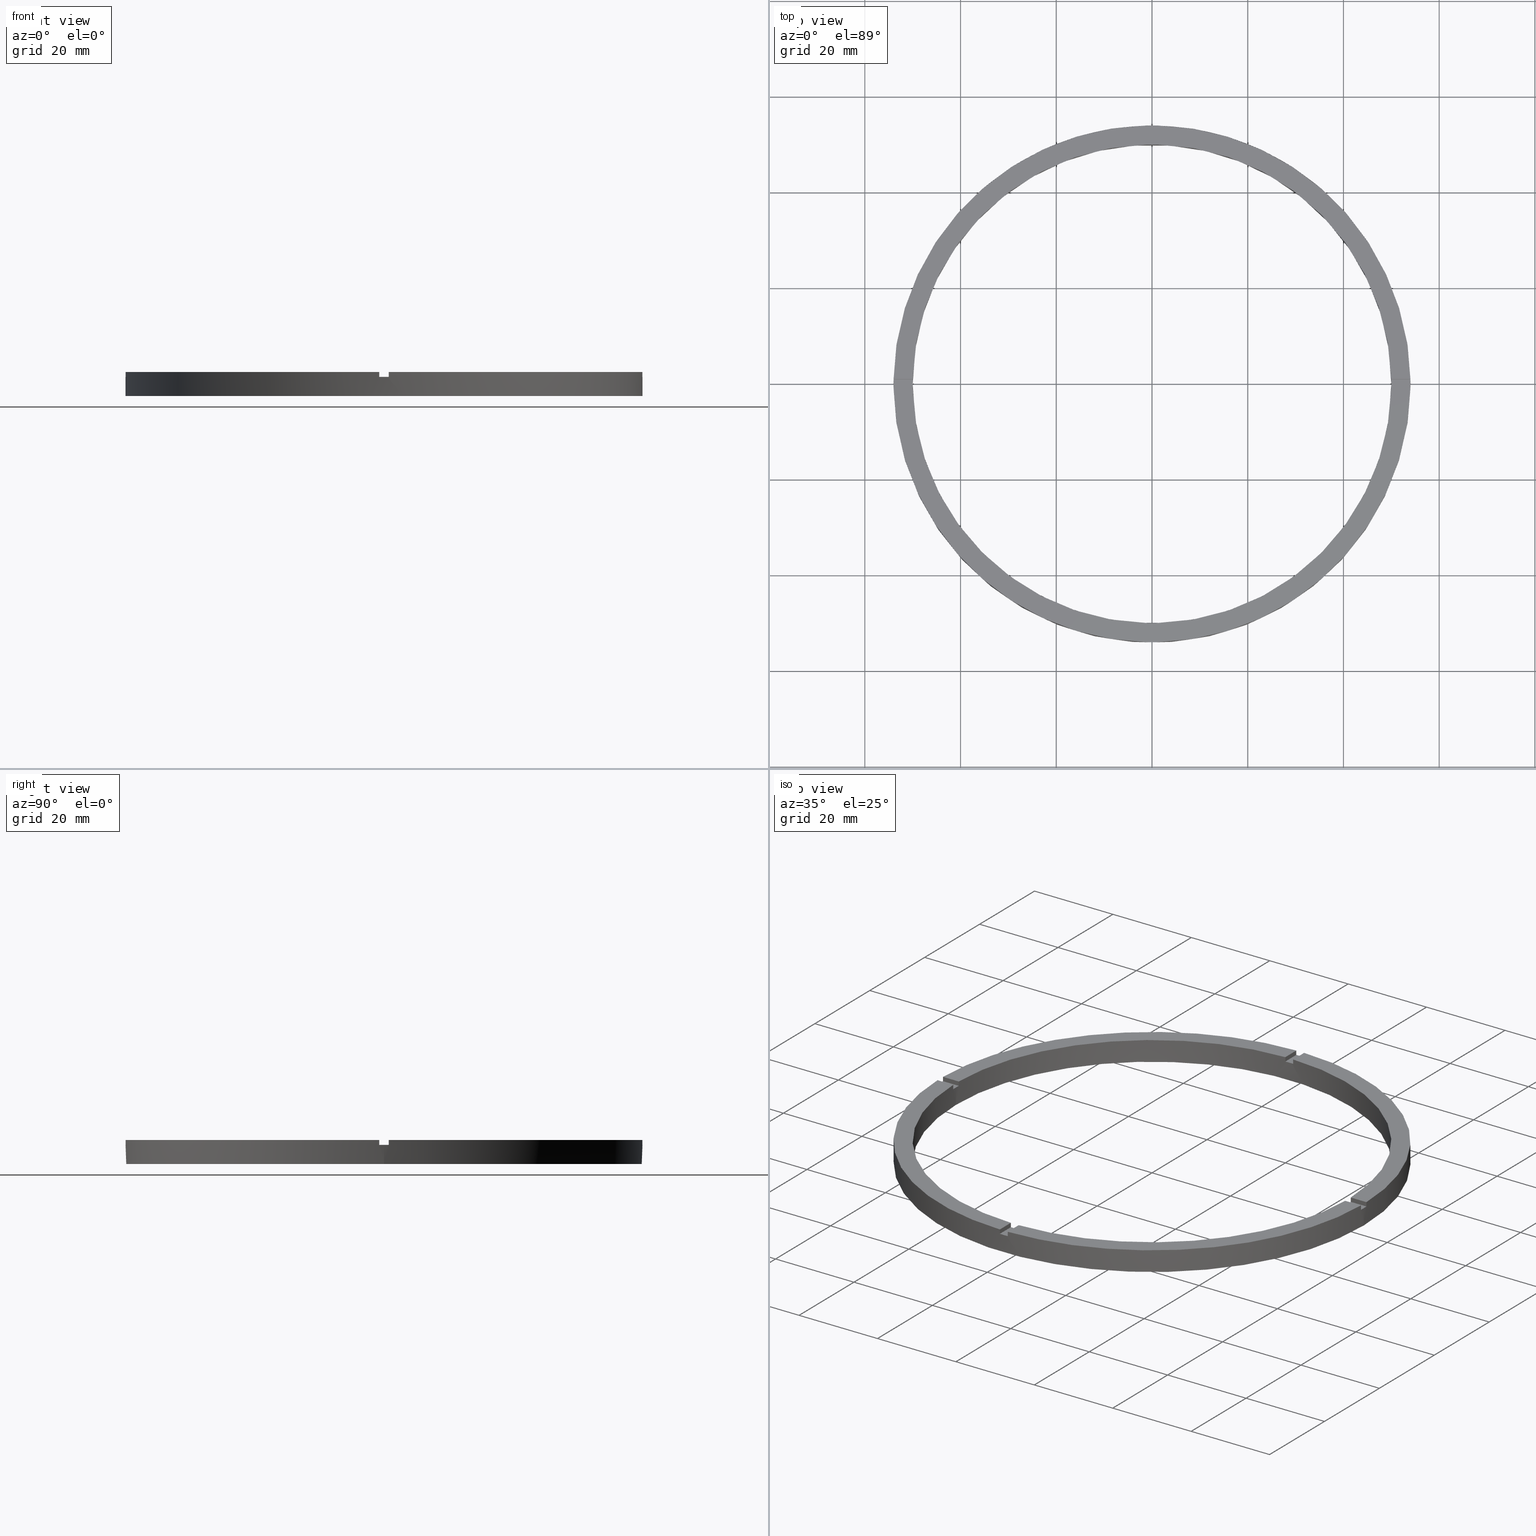
[diagram: canonical four-view strip — front | top / right | iso, engineering-drawing reading convention]
A machine part, canonical four-view strip (front | top / right | iso — engineering-drawing reading convention). The complete STEP part file that produces these views, byte-faithful:
ISO-10303-21;
HEADER;
FILE_DESCRIPTION (( 'STEP AP203' ),
    '1' );
FILE_NAME ('514221.step',
    '2024-12-26T02:49:29',
    ( 'MSI' ),
    ( '' ),
    'SwSTEP 2.0',
    'SolidWorks 2020',
    '' );
FILE_SCHEMA (( 'CONFIG_CONTROL_DESIGN' ));
ENDSEC;

DATA;
#1 = DIRECTION ( 'NONE',  ( 0.000000000000000000, -0.000000000000000000, 1.000000000000000000 ) ) ;
#2 = CARTESIAN_POINT ( 'NONE',  ( 0.000000000000000000, 0.000000000000000000, 0.000000000000000000 ) ) ;
#3 = APPROVAL ( #411, 'δָ��' ) ;
#4 = EDGE_CURVE ( 'NONE', #159, #285, #277, .T. ) ;
#5 = CARTESIAN_POINT ( 'NONE',  ( -49.98999899979995121, -1.000000000000031974, 4.000000000000000000 ) ) ;
#6 = EDGE_CURVE ( 'NONE', #728, #217, #572, .T. ) ;
#7 = AXIS2_PLACEMENT_3D ( 'NONE', #384, #80, #138 ) ;
#8 = DIRECTION ( 'NONE',  ( 0.000000000000000000, -0.000000000000000000, 1.000000000000000000 ) ) ;
#9 = AXIS2_PLACEMENT_3D ( 'NONE', #774, #11, #346 ) ;
#10 = CARTESIAN_POINT ( 'NONE',  ( 53.99073994677235788, 0.9999999999998456790, 4.000000000000000000 ) ) ;
#11 = DIRECTION ( 'NONE',  ( 0.000000000000000000, 0.000000000000000000, 1.000000000000000000 ) ) ;
#12 = AXIS2_PLACEMENT_3D ( 'NONE', #659, #216, #717 ) ;
#13 = CARTESIAN_POINT ( 'NONE',  ( 43.99999999999999289, 0.9999999999998450129, 4.000000000000000000 ) ) ;
#14 = CARTESIAN_POINT ( 'NONE',  ( -1.000000000000027311, 53.99073994677235078, 5.000000000000000000 ) ) ;
#15 = CARTESIAN_POINT ( 'NONE',  ( 54.00000000000000000, 6.613092715395707467E-15, 4.000000000000000000 ) ) ;
#16 = EDGE_CURVE ( 'NONE', #146, #57, #47, .T. ) ;
#17 = CARTESIAN_POINT ( 'NONE',  ( 43.99999999999999289, -1.000000000000154987, 4.000000000000000000 ) ) ;
#18 = DIRECTION ( 'NONE',  ( -0.000000000000000000, 0.000000000000000000, 1.000000000000000000 ) ) ;
#19 = EDGE_LOOP ( 'NONE', ( #708, #410, #448, #162 ) ) ;
#20 = DIRECTION ( 'NONE',  ( 1.000000000000000000, 0.000000000000000000, -0.000000000000000000 ) ) ;
#21 = LINE ( 'NONE', #168, #278 ) ;
#22 = APPROVAL_ROLE ( '' ) ;
#23 = LINE ( 'NONE', #362, #293 ) ;
#24 = PRODUCT_DEFINITION ( 'δ֪', '', #363, #190 ) ;
#25 = EDGE_CURVE ( 'NONE', #301, #200, #280, .T. ) ;
#26 = DIRECTION ( 'NONE',  ( 0.000000000000000000, 0.000000000000000000, 1.000000000000000000 ) ) ;
#27 = VECTOR ( 'NONE', #434, 1000.000000000000000 ) ;
#28 = PRODUCT_DEFINITION_SHAPE ( 'NONE', 'NONE',  #24 ) ;
#29 = DIRECTION ( 'NONE',  ( -0.000000000000000000, -1.000000000000000000, -0.000000000000000000 ) ) ;
#30 = LINE ( 'NONE', #606, #561 ) ;
#31 = PLANE ( 'NONE',  #641 ) ;
#32 = ORIENTED_EDGE ( 'NONE', *, *, #532, .T. ) ;
#33 = APPROVAL_STATUS ( 'not_yet_approved' ) ;
#34 = FACE_OUTER_BOUND ( 'NONE', #425, .T. ) ;
#35 = DIRECTION ( 'NONE',  ( -6.505213034913025371E-17, 1.000000000000000000, 0.000000000000000000 ) ) ;
#36 = CARTESIAN_POINT ( 'NONE',  ( 0.000000000000000000, 0.000000000000000000, 5.000000000000000000 ) ) ;
#37 = CALENDAR_DATE ( 2024, 26, 12 ) ;
#38 = LINE ( 'NONE', #497, #72 ) ;
#39 = VECTOR ( 'NONE', #130, 1000.000000000000000 ) ;
#40 = ORIENTED_EDGE ( 'NONE', *, *, #663, .F. ) ;
#41 = CARTESIAN_POINT ( 'NONE',  ( 0.000000000000000000, 0.000000000000000000, 0.000000000000000000 ) ) ;
#42 = CIRCLE ( 'NONE', #458, 50.00000000000000000 ) ;
#43 = AXIS2_PLACEMENT_3D ( 'NONE', #762, #215, #110 ) ;
#44 = ADVANCED_FACE ( 'NONE', ( #295 ), #575, .F. ) ;
#45 = FACE_OUTER_BOUND ( 'NONE', #702, .T. ) ;
#46 = APPROVAL_PERSON_ORGANIZATION ( #61, #558, #337 ) ;
#47 = CIRCLE ( 'NONE', #350, 54.00000000000000000 ) ;
#48 = ORIENTED_EDGE ( 'NONE', *, *, #768, .T. ) ;
#49 = CARTESIAN_POINT ( 'NONE',  ( 0.9999999999998436806, -49.98999899979995831, 5.000000000000000000 ) ) ;
#50 = CARTESIAN_POINT ( 'NONE',  ( 0.9999999999998427924, -44.00000000000017764, 4.000000000000000000 ) ) ;
#51 = COORDINATED_UNIVERSAL_TIME_OFFSET ( 8, 0, .AHEAD. ) ;
#52 = FACE_OUTER_BOUND ( 'NONE', #206, .T. ) ;
#53 = PERSON_AND_ORGANIZATION_ROLE ( 'creator' ) ;
#54 = ORIENTED_EDGE ( 'NONE', *, *, #128, .T. ) ;
#55 = COORDINATED_UNIVERSAL_TIME_OFFSET ( 8, 0, .AHEAD. ) ;
#56 = ORIENTED_EDGE ( 'NONE', *, *, #377, .F. ) ;
#57 = VERTEX_POINT ( 'NONE', #207 ) ;
#58 = AXIS2_PLACEMENT_3D ( 'NONE', #514, #698, #463 ) ;
#59 = COORDINATED_UNIVERSAL_TIME_OFFSET ( 8, 0, .AHEAD. ) ;
#60 = EDGE_LOOP ( 'NONE', ( #429, #380, #447, #180 ) ) ;
#61 = PERSON_AND_ORGANIZATION ( #125, #443 ) ;
#62 = LINE ( 'NONE', #113, #555 ) ;
#63 = FACE_OUTER_BOUND ( 'NONE', #186, .T. ) ;
#64 = DATE_AND_TIME ( #68, #292 ) ;
#65 = CARTESIAN_POINT ( 'NONE',  ( -1.000000000000157208, -44.00000000000017764, 4.000000000000000000 ) ) ;
#66 = ORIENTED_EDGE ( 'NONE', *, *, #226, .T. ) ;
#67 = AXIS2_PLACEMENT_3D ( 'NONE', #772, #26, #239 ) ;
#68 = CALENDAR_DATE ( 2024, 26, 12 ) ;
#69 = CARTESIAN_POINT ( 'NONE',  ( 0.000000000000000000, 0.000000000000000000, 5.000000000000000000 ) ) ;
#70 = FACE_OUTER_BOUND ( 'NONE', #688, .T. ) ;
#71 = CARTESIAN_POINT ( 'NONE',  ( -1.000000000000157208, -44.00000000000017764, 4.000000000000000000 ) ) ;
#72 = VECTOR ( 'NONE', #779, 1000.000000000000000 ) ;
#73 = CIRCLE ( 'NONE', #58, 54.00000000000000000 ) ;
#74 = LINE ( 'NONE', #391, #608 ) ;
#75 = AXIS2_PLACEMENT_3D ( 'NONE', #342, #402, #476 ) ;
#76 = PLANE ( 'NONE',  #170 ) ;
#77 = LINE ( 'NONE', #770, #609 ) ;
#78 = CARTESIAN_POINT ( 'NONE',  ( 53.99073994677235078, -1.000000000000154321, 4.000000000000000000 ) ) ;
#79 = LINE ( 'NONE', #562, #605 ) ;
#80 = DIRECTION ( 'NONE',  ( -0.000000000000000000, -0.000000000000000000, -1.000000000000000000 ) ) ;
#81 = CIRCLE ( 'NONE', #419, 50.00000000000000000 ) ;
#82 = VECTOR ( 'NONE', #516, 1000.000000000000000 ) ;
#83 = CIRCLE ( 'NONE', #75, 50.00000000000000000 ) ;
#84 = LINE ( 'NONE', #111, #618 ) ;
#85 = EDGE_CURVE ( 'NONE', #689, #155, #546, .T. ) ;
#86 = ORIENTED_EDGE ( 'NONE', *, *, #156, .T. ) ;
#87 = LINE ( 'NONE', #764, #97 ) ;
#88 = ORIENTED_EDGE ( 'NONE', *, *, #214, .T. ) ;
#89 = CIRCLE ( 'NONE', #778, 50.00000000000000000 ) ;
#90 = CIRCLE ( 'NONE', #712, 54.00000000000000000 ) ;
#91 = VECTOR ( 'NONE', #539, 1000.000000000000000 ) ;
#92 = EDGE_CURVE ( 'NONE', #146, #210, #283, .T. ) ;
#93 = DIRECTION ( 'NONE',  ( -0.000000000000000000, 0.000000000000000000, 1.000000000000000000 ) ) ;
#94 = CIRCLE ( 'NONE', #43, 50.00000000000000000 ) ;
#95 = LINE ( 'NONE', #487, #82 ) ;
#96 = VECTOR ( 'NONE', #166, 1000.000000000000000 ) ;
#97 = VECTOR ( 'NONE', #773, 1000.000000000000000 ) ;
#98 = CIRCLE ( 'NONE', #390, 54.00000000000000000 ) ;
#99 = CARTESIAN_POINT ( 'NONE',  ( 0.9999999999998436806, -49.98999899979995831, 5.000000000000000000 ) ) ;
#100 = FACE_OUTER_BOUND ( 'NONE', #547, .T. ) ;
#101 = EDGE_CURVE ( 'NONE', #639, #760, #300, .T. ) ;
#102 = CIRCLE ( 'NONE', #444, 54.00000000000000000 ) ;
#103 = ORIENTED_EDGE ( 'NONE', *, *, #329, .F. ) ;
#104 = VECTOR ( 'NONE', #29, 1000.000000000000000 ) ;
#105 = LINE ( 'NONE', #65, #366 ) ;
#106 = AXIS2_PLACEMENT_3D ( 'NONE', #323, #18, #692 ) ;
#107 = VECTOR ( 'NONE', #357, 1000.000000000000000 ) ;
#108 = ADVANCED_FACE ( 'NONE', ( #306 ), #424, .F. ) ;
#109 = FACE_BOUND ( 'NONE', #488, .T. ) ;
#110 = DIRECTION ( 'NONE',  ( 1.000000000000000000, 0.000000000000000000, 0.000000000000000000 ) ) ;
#111 = CARTESIAN_POINT ( 'NONE',  ( 43.99999999999999289, 0.9999999999998450129, 4.000000000000000000 ) ) ;
#112 = EDGE_CURVE ( 'NONE', #689, #639, #23, .T. ) ;
#113 = CARTESIAN_POINT ( 'NONE',  ( 0.9999999999999726885, 53.99073994677235078, 5.000000000000000000 ) ) ;
#114 = ORIENTED_EDGE ( 'NONE', *, *, #248, .T. ) ;
#115 = VECTOR ( 'NONE', #665, 1000.000000000000000 ) ;
#116 = VERTEX_POINT ( 'NONE', #264 ) ;
#117 = AXIS2_PLACEMENT_3D ( 'NONE', #370, #246, #244 ) ;
#118 = ORIENTED_EDGE ( 'NONE', *, *, #231, .T. ) ;
#119 = ORIENTED_EDGE ( 'NONE', *, *, #550, .T. ) ;
#120 = CC_DESIGN_PERSON_AND_ORGANIZATION_ASSIGNMENT ( #571, #53, ( #24 ) ) ;
#121 = CARTESIAN_POINT ( 'NONE',  ( 43.99999999999999289, -1.000000000000154987, 5.000000000000000000 ) ) ;
#122 = DIRECTION ( 'NONE',  ( -1.000000000000000000, -6.505213034913025371E-17, 0.000000000000000000 ) ) ;
#123 = ORIENTED_EDGE ( 'NONE', *, *, #581, .F. ) ;
#124 = ADVANCED_FACE ( 'NONE', ( #63 ), #316, .T. ) ;
#125 = PERSON ( 'δָ��', 'δָ��', 'δָ��', ('δָ��'), ('δָ��'), ('δָ��') ) ;
#126 = ORIENTED_EDGE ( 'NONE', *, *, #25, .F. ) ;
#127 = ORIENTED_EDGE ( 'NONE', *, *, #85, .F. ) ;
#128 = EDGE_CURVE ( 'NONE', #149, #759, #30, .T. ) ;
#129 = CARTESIAN_POINT ( 'NONE',  ( -53.99073994677235078, -1.000000000000032863, 4.000000000000000000 ) ) ;
#130 = DIRECTION ( 'NONE',  ( 0.000000000000000000, 0.000000000000000000, 1.000000000000000000 ) ) ;
#131 = EDGE_CURVE ( 'NONE', #152, #217, #559, .T. ) ;
#132 = AXIS2_PLACEMENT_3D ( 'NONE', #413, #1, #255 ) ;
#133 = DIRECTION ( 'NONE',  ( 1.517883041479705961E-16, -1.000000000000000000, 0.000000000000000000 ) ) ;
#134 = ADVANCED_FACE ( 'NONE', ( #52 ), #580, .F. ) ;
#135 = UNCERTAINTY_MEASURE_WITH_UNIT (LENGTH_MEASURE( 1.000000000000000082E-05 ), #677, 'distance_accuracy_value', 'NONE');
#136 = CARTESIAN_POINT ( 'NONE',  ( 53.99073994677235788, 0.9999999999998456790, 5.000000000000000000 ) ) ;
#137 = AXIS2_PLACEMENT_3D ( 'NONE', #611, #782, #275 ) ;
#138 = DIRECTION ( 'NONE',  ( -1.000000000000000000, 0.000000000000000000, 0.000000000000000000 ) ) ;
#139 = EDGE_CURVE ( 'NONE', #140, #703, #21, .T. ) ;
#140 = VERTEX_POINT ( 'NONE', #557 ) ;
#141 = CARTESIAN_POINT ( 'NONE',  ( 0.9999999999999726885, 44.00000000000000000, 5.000000000000000000 ) ) ;
#142 = ORIENTED_EDGE ( 'NONE', *, *, #128, .F. ) ;
#143 = ORIENTED_EDGE ( 'NONE', *, *, #440, .T. ) ;
#144 = PRODUCT_RELATED_PRODUCT_CATEGORY ( 'detail', '', ( #533 ) ) ;
#145 = EDGE_LOOP ( 'NONE', ( #167, #164, #690, #674 ) ) ;
#146 = VERTEX_POINT ( 'NONE', #771 ) ;
#147 = ORIENTED_EDGE ( 'NONE', *, *, #25, .T. ) ;
#148 = PLANE ( 'NONE',  #544 ) ;
#149 = VERTEX_POINT ( 'NONE', #719 ) ;
#150 = EDGE_CURVE ( 'NONE', #703, #191, #276, .T. ) ;
#151 = ORIENTED_EDGE ( 'NONE', *, *, #431, .T. ) ;
#152 = VERTEX_POINT ( 'NONE', #489 ) ;
#153 = EDGE_LOOP ( 'NONE', ( #212, #48, #750, #752 ) ) ;
#154 = CARTESIAN_POINT ( 'NONE',  ( 0.000000000000000000, 0.000000000000000000, 5.000000000000000000 ) ) ;
#155 = VERTEX_POINT ( 'NONE', #765 ) ;
#156 = EDGE_CURVE ( 'NONE', #639, #695, #307, .T. ) ;
#157 = PERSON_AND_ORGANIZATION_ROLE ( 'classification_officer' ) ;
#158 = ORIENTED_EDGE ( 'NONE', *, *, #634, .F. ) ;
#159 = VERTEX_POINT ( 'NONE', #649 ) ;
#160 = DIRECTION ( 'NONE',  ( 0.000000000000000000, 0.000000000000000000, 1.000000000000000000 ) ) ;
#161 = PLANE ( 'NONE',  #776 ) ;
#162 = ORIENTED_EDGE ( 'NONE', *, *, #691, .F. ) ;
#163 = AXIS2_PLACEMENT_3D ( 'NONE', #536, #173, #365 ) ;
#164 = ORIENTED_EDGE ( 'NONE', *, *, #400, .F. ) ;
#165 = ORIENTED_EDGE ( 'NONE', *, *, #550, .F. ) ;
#166 = DIRECTION ( 'NONE',  ( -1.000000000000000000, -2.168404344971008621E-16, 0.000000000000000000 ) ) ;
#167 = ORIENTED_EDGE ( 'NONE', *, *, #440, .F. ) ;
#168 = CARTESIAN_POINT ( 'NONE',  ( 43.99999999999999289, -1.000000000000154987, 4.000000000000000000 ) ) ;
#169 = ORIENTED_EDGE ( 'NONE', *, *, #766, .T. ) ;
#170 = AXIS2_PLACEMENT_3D ( 'NONE', #181, #228, #525 ) ;
#171 = ADVANCED_FACE ( 'NONE', ( #70 ), #161, .T. ) ;
#172 = ORIENTED_EDGE ( 'NONE', *, *, #389, .F. ) ;
#173 = DIRECTION ( 'NONE',  ( -0.000000000000000000, -0.000000000000000000, -1.000000000000000000 ) ) ;
#174 = ORIENTED_EDGE ( 'NONE', *, *, #389, .T. ) ;
#175 = DIRECTION ( 'NONE',  ( 0.000000000000000000, 0.000000000000000000, 1.000000000000000000 ) ) ;
#176 = ORIENTED_EDGE ( 'NONE', *, *, #231, .F. ) ;
#177 = VERTEX_POINT ( 'NONE', #465 ) ;
#178 = AXIS2_PLACEMENT_3D ( 'NONE', #234, #93, #352 ) ;
#179 = ORIENTED_EDGE ( 'NONE', *, *, #567, .T. ) ;
#180 = ORIENTED_EDGE ( 'NONE', *, *, #382, .T. ) ;
#181 = CARTESIAN_POINT ( 'NONE',  ( -44.00000000000018474, 0.9999999999999694689, 4.000000000000000000 ) ) ;
#182 = CARTESIAN_POINT ( 'NONE',  ( -1.000000000000157208, -44.00000000000017764, 5.000000000000000000 ) ) ;
#183 = ORIENTED_EDGE ( 'NONE', *, *, #85, .T. ) ;
#184 = ORIENTED_EDGE ( 'NONE', *, *, #512, .F. ) ;
#185 = ORIENTED_EDGE ( 'NONE', *, *, #687, .F. ) ;
#186 = EDGE_LOOP ( 'NONE', ( #165, #616, #114, #127, #204, #185, #646, #700, #378, #123, #118, #468 ) ) ;
#187 = DIRECTION ( 'NONE',  ( 1.000000000000000000, 0.000000000000000000, 0.000000000000000000 ) ) ;
#188 = VERTEX_POINT ( 'NONE', #521 ) ;
#189 = DIRECTION ( 'NONE',  ( 0.000000000000000000, 0.000000000000000000, 1.000000000000000000 ) ) ;
#190 = DESIGN_CONTEXT ( 'detailed design', #262, 'design' ) ;
#191 = VERTEX_POINT ( 'NONE', #15 ) ;
#192 = CARTESIAN_POINT ( 'NONE',  ( 0.000000000000000000, 0.000000000000000000, 0.000000000000000000 ) ) ;
#193 = PERSON_AND_ORGANIZATION ( #125, #443 ) ;
#194 = CC_DESIGN_APPROVAL ( #558, ( #363 ) ) ;
#195 = CARTESIAN_POINT ( 'NONE',  ( -44.00000000000018474, -1.000000000000030642, 5.000000000000000000 ) ) ;
#196 = ORIENTED_EDGE ( 'NONE', *, *, #248, .F. ) ;
#197 = ADVANCED_FACE ( 'NONE', ( #297 ), #31, .T. ) ;
#198 = CARTESIAN_POINT ( 'NONE',  ( 0.9999999999998443467, -53.99073994677235788, 5.000000000000000000 ) ) ;
#199 = ORIENTED_EDGE ( 'NONE', *, *, #492, .F. ) ;
#200 = VERTEX_POINT ( 'NONE', #479 ) ;
#201 = APPROVAL_PERSON_ORGANIZATION ( #723, #436, #236 ) ;
#202 = CARTESIAN_POINT ( 'NONE',  ( 49.98999899979995121, -1.000000000000154543, 5.000000000000000000 ) ) ;
#203 = COORDINATED_UNIVERSAL_TIME_OFFSET ( 8, 0, .AHEAD. ) ;
#204 = ORIENTED_EDGE ( 'NONE', *, *, #582, .T. ) ;
#205 = AXIS2_PLACEMENT_3D ( 'NONE', #499, #8, #682 ) ;
#206 = EDGE_LOOP ( 'NONE', ( #103, #414, #143, #369 ) ) ;
#207 = CARTESIAN_POINT ( 'NONE',  ( 0.9999999999999726885, 53.99073994677235078, 5.000000000000000000 ) ) ;
#208 = ORIENTED_EDGE ( 'NONE', *, *, #537, .F. ) ;
#209 = AXIS2_PLACEMENT_3D ( 'NONE', #777, #256, #388 ) ;
#210 = VERTEX_POINT ( 'NONE', #592 ) ;
#211 = ORIENTED_EDGE ( 'NONE', *, *, #112, .F. ) ;
#212 = ORIENTED_EDGE ( 'NONE', *, *, #620, .F. ) ;
#213 = ORIENTED_EDGE ( 'NONE', *, *, #746, .F. ) ;
#214 = EDGE_CURVE ( 'NONE', #285, #699, #589, .T. ) ;
#215 = DIRECTION ( 'NONE',  ( 0.000000000000000000, 0.000000000000000000, 1.000000000000000000 ) ) ;
#216 = DIRECTION ( 'NONE',  ( 0.000000000000000000, 0.000000000000000000, 1.000000000000000000 ) ) ;
#217 = VERTEX_POINT ( 'NONE', #528 ) ;
#218 = EDGE_LOOP ( 'NONE', ( #569, #291, #477, #748, #208, #585, #213, #310, #288, #478, #54, #56 ) ) ;
#219 = EDGE_LOOP ( 'NONE', ( #684, #696, #720, #409 ) ) ;
#220 = VERTEX_POINT ( 'NONE', #730 ) ;
#221 = DIRECTION ( 'NONE',  ( -1.000000000000000000, -2.168404344971008621E-16, 0.000000000000000000 ) ) ;
#222 = CARTESIAN_POINT ( 'NONE',  ( -44.00000000000018474, -1.000000000000030642, 4.000000000000000000 ) ) ;
#223 = VERTEX_POINT ( 'NONE', #756 ) ;
#224 = CARTESIAN_POINT ( 'NONE',  ( 0.000000000000000000, 0.000000000000000000, 5.000000000000000000 ) ) ;
#225 = CARTESIAN_POINT ( 'NONE',  ( -1.000000000000027311, 44.00000000000000000, 4.000000000000000000 ) ) ;
#226 = EDGE_CURVE ( 'NONE', #159, #116, #286, .T. ) ;
#227 = APPLICATION_CONTEXT ( 'configuration controlled 3d designs of mechanical parts and assemblies' ) ;
#228 = DIRECTION ( 'NONE',  ( -2.168404344971008621E-16, 1.000000000000000000, 0.000000000000000000 ) ) ;
#229 = DIRECTION ( 'NONE',  ( 1.000000000000000000, 0.000000000000000000, 0.000000000000000000 ) ) ;
#230 = DIRECTION ( 'NONE',  ( 1.000000000000000000, 0.000000000000000000, -0.000000000000000000 ) ) ;
#231 = EDGE_CURVE ( 'NONE', #188, #556, #552, .T. ) ;
#232 = ADVANCED_FACE ( 'NONE', ( #303 ), #76, .F. ) ;
#233 = PLANE ( 'NONE',  #132 ) ;
#234 = CARTESIAN_POINT ( 'NONE',  ( 0.000000000000000000, 0.000000000000000000, 4.000000000000000000 ) ) ;
#235 = ADVANCED_BREP_SHAPE_REPRESENTATION ( '514221', ( #610, #507 ), #529 ) ;
#236 = APPROVAL_ROLE ( '' ) ;
#237 = DIRECTION ( 'NONE',  ( 0.000000000000000000, 0.000000000000000000, 1.000000000000000000 ) ) ;
#238 = EDGE_CURVE ( 'NONE', #753, #223, #591, .T. ) ;
#239 = DIRECTION ( 'NONE',  ( 1.000000000000000000, 0.000000000000000000, 0.000000000000000000 ) ) ;
#240 = ADVANCED_FACE ( 'NONE', ( #584 ), #493, .T. ) ;
#241 = DIRECTION ( 'NONE',  ( -0.000000000000000000, -0.000000000000000000, -1.000000000000000000 ) ) ;
#242 = CARTESIAN_POINT ( 'NONE',  ( 0.000000000000000000, 0.000000000000000000, 5.000000000000000000 ) ) ;
#243 = AXIS2_PLACEMENT_3D ( 'NONE', #2, #675, #624 ) ;
#244 = DIRECTION ( 'NONE',  ( 1.000000000000000000, 0.000000000000000000, -0.000000000000000000 ) ) ;
#245 = EDGE_CURVE ( 'NONE', #301, #57, #62, .T. ) ;
#246 = DIRECTION ( 'NONE',  ( 0.000000000000000000, 0.000000000000000000, 1.000000000000000000 ) ) ;
#247 = AXIS2_PLACEMENT_3D ( 'NONE', #41, #503, #540 ) ;
#248 = EDGE_CURVE ( 'NONE', #703, #155, #586, .T. ) ;
#249 = CARTESIAN_POINT ( 'NONE',  ( 0.000000000000000000, 0.000000000000000000, 5.000000000000000000 ) ) ;
#250 = EDGE_CURVE ( 'NONE', #695, #155, #312, .T. ) ;
#251 = DIRECTION ( 'NONE',  ( 1.000000000000000000, 6.505213034913025371E-17, 0.000000000000000000 ) ) ;
#252 = AXIS2_PLACEMENT_3D ( 'NONE', #69, #237, #724 ) ;
#253 = CARTESIAN_POINT ( 'NONE',  ( -49.98999899979995121, 0.9999999999999681366, 5.000000000000000000 ) ) ;
#254 = PLANE ( 'NONE',  #769 ) ;
#255 = DIRECTION ( 'NONE',  ( 1.000000000000000000, 0.000000000000000000, -0.000000000000000000 ) ) ;
#256 = DIRECTION ( 'NONE',  ( 0.000000000000000000, 0.000000000000000000, 1.000000000000000000 ) ) ;
#257 = DIRECTION ( 'NONE',  ( 0.000000000000000000, 0.000000000000000000, 1.000000000000000000 ) ) ;
#258 = EDGE_CURVE ( 'NONE', #149, #699, #563, .T. ) ;
#259 = DIRECTION ( 'NONE',  ( 0.000000000000000000, 0.000000000000000000, 1.000000000000000000 ) ) ;
#260 = ADVANCED_FACE ( 'NONE', ( #34 ), #233, .T. ) ;
#261 = CC_DESIGN_SECURITY_CLASSIFICATION ( #763, ( #363 ) ) ;
#262 = APPLICATION_CONTEXT ( 'configuration controlled 3d designs of mechanical parts and assemblies' ) ;
#263 = EDGE_CURVE ( 'NONE', #140, #695, #38, .T. ) ;
#264 = CARTESIAN_POINT ( 'NONE',  ( -49.98999899979995121, -1.000000000000031974, 5.000000000000000000 ) ) ;
#265 = ADVANCED_FACE ( 'NONE', ( #45 ), #401, .F. ) ;
#266 = DIRECTION ( 'NONE',  ( 0.000000000000000000, 0.000000000000000000, 1.000000000000000000 ) ) ;
#267 = CARTESIAN_POINT ( 'NONE',  ( -1.000000000000156319, -49.98999899979995121, 5.000000000000000000 ) ) ;
#268 = DIRECTION ( 'NONE',  ( 0.000000000000000000, 0.000000000000000000, 1.000000000000000000 ) ) ;
#269 = EDGE_CURVE ( 'NONE', #753, #220, #42, .T. ) ;
#270 = DIRECTION ( 'NONE',  ( -0.000000000000000000, -0.000000000000000000, -1.000000000000000000 ) ) ;
#271 = AXIS2_PLACEMENT_3D ( 'NONE', #340, #502, #475 ) ;
#272 = VECTOR ( 'NONE', #504, 1000.000000000000000 ) ;
#273 = DIRECTION ( 'NONE',  ( 1.000000000000000000, 0.000000000000000000, -0.000000000000000000 ) ) ;
#274 = VECTOR ( 'NONE', #740, 1000.000000000000000 ) ;
#275 = DIRECTION ( 'NONE',  ( 1.000000000000000000, 0.000000000000000000, 0.000000000000000000 ) ) ;
#276 = CIRCLE ( 'NONE', #522, 54.00000000000000000 ) ;
#277 = LINE ( 'NONE', #506, #578 ) ;
#278 = VECTOR ( 'NONE', #325, 1000.000000000000000 ) ;
#279 = CARTESIAN_POINT ( 'NONE',  ( -54.00000000000000000, 0.000000000000000000, 5.000000000000000000 ) ) ;
#280 = CIRCLE ( 'NONE', #205, 54.00000000000000000 ) ;
#281 = DIRECTION ( 'NONE',  ( -1.000000000000000000, 0.000000000000000000, 0.000000000000000000 ) ) ;
#282 = AXIS2_PLACEMENT_3D ( 'NONE', #249, #386, #445 ) ;
#283 = LINE ( 'NONE', #510, #274 ) ;
#284 = APPROVAL_DATE_TIME ( #577, #436 ) ;
#285 = VERTEX_POINT ( 'NONE', #129 ) ;
#286 = LINE ( 'NONE', #195, #272 ) ;
#287 = VECTOR ( 'NONE', #751, 1000.000000000000000 ) ;
#288 = ORIENTED_EDGE ( 'NONE', *, *, #768, .F. ) ;
#289 = DATE_AND_TIME ( #583, #597 ) ;
#290 = DIRECTION ( 'NONE',  ( 1.000000000000000000, 0.000000000000000000, 0.000000000000000000 ) ) ;
#291 = ORIENTED_EDGE ( 'NONE', *, *, #269, .T. ) ;
#292 = LOCAL_TIME ( 10, 49, 29.00000000000000000, #51 ) ;
#293 = VECTOR ( 'NONE', #669, 1000.000000000000000 ) ;
#294 = PERSON_AND_ORGANIZATION ( #125, #443 ) ;
#295 = FACE_OUTER_BOUND ( 'NONE', #551, .T. ) ;
#296 = CALENDAR_DATE ( 2024, 26, 12 ) ;
#297 = FACE_OUTER_BOUND ( 'NONE', #678, .T. ) ;
#298 = ORIENTED_EDGE ( 'NONE', *, *, #581, .T. ) ;
#299 = DATE_AND_TIME ( #37, #315 ) ;
#300 = LINE ( 'NONE', #49, #545 ) ;
#301 = VERTEX_POINT ( 'NONE', #603 ) ;
#302 = LOCAL_TIME ( 10, 49, 29.00000000000000000, #55 ) ;
#303 = FACE_OUTER_BOUND ( 'NONE', #153, .T. ) ;
#304 = EDGE_CURVE ( 'NONE', #191, #446, #623, .T. ) ;
#305 = SHAPE_DEFINITION_REPRESENTATION ( #28, #235 ) ;
#306 = FACE_OUTER_BOUND ( 'NONE', #219, .T. ) ;
#307 = CIRCLE ( 'NONE', #9, 50.00000000000000000 ) ;
#308 = PLANE ( 'NONE',  #343 ) ;
#309 = COORDINATED_UNIVERSAL_TIME_OFFSET ( 8, 0, .AHEAD. ) ;
#310 = ORIENTED_EDGE ( 'NONE', *, *, #512, .T. ) ;
#311 = APPROVAL_DATE_TIME ( #64, #558 ) ;
#312 = LINE ( 'NONE', #121, #594 ) ;
#313 = CC_DESIGN_PERSON_AND_ORGANIZATION_ASSIGNMENT ( #294, #157, ( #763 ) ) ;
#314 = EDGE_CURVE ( 'NONE', #759, #223, #602, .T. ) ;
#315 = LOCAL_TIME ( 10, 49, 29.00000000000000000, #309 ) ;
#316 = CYLINDRICAL_SURFACE ( 'NONE', #383, 54.00000000000000000 ) ;
#317 = PERSON_AND_ORGANIZATION ( #125, #443 ) ;
#318 = LINE ( 'NONE', #587, #633 ) ;
#319 = VECTOR ( 'NONE', #221, 1000.000000000000000 ) ;
#320 = ORIENTED_EDGE ( 'NONE', *, *, #4, .F. ) ;
#321 = FACE_OUTER_BOUND ( 'NONE', #19, .T. ) ;
#322 = PLANE ( 'NONE',  #178 ) ;
#323 = CARTESIAN_POINT ( 'NONE',  ( 0.000000000000000000, 0.000000000000000000, 4.000000000000000000 ) ) ;
#324 = LINE ( 'NONE', #527, #626 ) ;
#325 = DIRECTION ( 'NONE',  ( 1.000000000000000000, 6.505213034913025371E-17, 0.000000000000000000 ) ) ;
#326 = FACE_OUTER_BOUND ( 'NONE', #406, .T. ) ;
#327 = FACE_OUTER_BOUND ( 'NONE', #60, .T. ) ;
#328 = VECTOR ( 'NONE', #736, 1000.000000000000000 ) ;
#329 = EDGE_CURVE ( 'NONE', #470, #301, #318, .T. ) ;
#330 = VERTEX_POINT ( 'NONE', #253 ) ;
#331 = CARTESIAN_POINT ( 'NONE',  ( -44.00000000000018474, 0.9999999999999694689, 5.000000000000000000 ) ) ;
#332 = LINE ( 'NONE', #331, #319 ) ;
#333 = ORIENTED_EDGE ( 'NONE', *, *, #258, .T. ) ;
#334 = DIRECTION ( 'NONE',  ( 1.000000000000000000, -0.000000000000000000, 0.000000000000000000 ) ) ;
#335 = FACE_OUTER_BOUND ( 'NONE', #455, .T. ) ;
#336 = ORIENTED_EDGE ( 'NONE', *, *, #101, .F. ) ;
#337 = APPROVAL_ROLE ( '' ) ;
#338 = VECTOR ( 'NONE', #553, 1000.000000000000000 ) ;
#339 = LINE ( 'NONE', #136, #91 ) ;
#340 = CARTESIAN_POINT ( 'NONE',  ( -44.00000000000018474, -1.000000000000030642, 4.000000000000000000 ) ) ;
#341 = VERTEX_POINT ( 'NONE', #515 ) ;
#342 = CARTESIAN_POINT ( 'NONE',  ( 0.000000000000000000, 0.000000000000000000, 4.000000000000000000 ) ) ;
#343 = AXIS2_PLACEMENT_3D ( 'NONE', #498, #535, #273 ) ;
#344 = CARTESIAN_POINT ( 'NONE',  ( -54.00000000000000000, 0.000000000000000000, 0.000000000000000000 ) ) ;
#345 = CIRCLE ( 'NONE', #209, 50.00000000000000000 ) ;
#346 = DIRECTION ( 'NONE',  ( 1.000000000000000000, 0.000000000000000000, 0.000000000000000000 ) ) ;
#347 = CIRCLE ( 'NONE', #722, 50.00000000000000000 ) ;
#348 = APPLICATION_PROTOCOL_DEFINITION ( 'international standard', 'config_control_design', 1994, #262 ) ;
#349 = LINE ( 'NONE', #14, #635 ) ;
#350 = AXIS2_PLACEMENT_3D ( 'NONE', #542, #632, #290 ) ;
#351 = LINE ( 'NONE', #590, #96 ) ;
#352 = DIRECTION ( 'NONE',  ( 1.000000000000000000, 0.000000000000000000, 0.000000000000000000 ) ) ;
#353 = DIRECTION ( 'NONE',  ( -0.000000000000000000, -0.000000000000000000, -1.000000000000000000 ) ) ;
#354 = CIRCLE ( 'NONE', #106, 50.00000000000000000 ) ;
#355 = VECTOR ( 'NONE', #175, 1000.000000000000000 ) ;
#356 = LINE ( 'NONE', #680, #364 ) ;
#357 = DIRECTION ( 'NONE',  ( -0.000000000000000000, -0.000000000000000000, -1.000000000000000000 ) ) ;
#358 = VERTEX_POINT ( 'NONE', #647 ) ;
#359 = CYLINDRICAL_SURFACE ( 'NONE', #163, 54.00000000000000000 ) ;
#360 = LINE ( 'NONE', #182, #328 ) ;
#361 = ORIENTED_EDGE ( 'NONE', *, *, #396, .F. ) ;
#362 = CARTESIAN_POINT ( 'NONE',  ( 0.9999999999998427924, -44.00000000000017764, 5.000000000000000000 ) ) ;
#363 = PRODUCT_DEFINITION_FORMATION_WITH_SPECIFIED_SOURCE ( '�κ�', '', #533, .NOT_KNOWN. ) ;
#364 = VECTOR ( 'NONE', #268, 1000.000000000000000 ) ;
#365 = DIRECTION ( 'NONE',  ( -1.000000000000000000, 0.000000000000000000, 0.000000000000000000 ) ) ;
#366 = VECTOR ( 'NONE', #133, 1000.000000000000000 ) ;
#367 = ADVANCED_FACE ( 'NONE', ( #614 ), #254, .F. ) ;
#368 = CYLINDRICAL_SURFACE ( 'NONE', #554, 50.00000000000000000 ) ;
#369 = ORIENTED_EDGE ( 'NONE', *, *, #245, .F. ) ;
#370 = CARTESIAN_POINT ( 'NONE',  ( 0.000000000000000000, 0.000000000000000000, 5.000000000000000000 ) ) ;
#371 = EDGE_CURVE ( 'NONE', #116, #699, #79, .T. ) ;
#372 = DIRECTION ( 'NONE',  ( 0.000000000000000000, 0.000000000000000000, 1.000000000000000000 ) ) ;
#373 = DIRECTION ( 'NONE',  ( 0.000000000000000000, 1.000000000000000000, 0.000000000000000000 ) ) ;
#374 = DIRECTION ( 'NONE',  ( 1.000000000000000000, 0.000000000000000000, 0.000000000000000000 ) ) ;
#375 = CC_DESIGN_PERSON_AND_ORGANIZATION_ASSIGNMENT ( #193, #405, ( #533 ) ) ;
#376 = CARTESIAN_POINT ( 'NONE',  ( 0.000000000000000000, 0.000000000000000000, 5.000000000000000000 ) ) ;
#377 = EDGE_CURVE ( 'NONE', #223, #759, #94, .T. ) ;
#378 = ORIENTED_EDGE ( 'NONE', *, *, #4, .T. ) ;
#379 = CARTESIAN_POINT ( 'NONE',  ( 0.000000000000000000, 0.000000000000000000, 4.000000000000000000 ) ) ;
#380 = ORIENTED_EDGE ( 'NONE', *, *, #741, .F. ) ;
#381 = ORIENTED_EDGE ( 'NONE', *, *, #131, .T. ) ;
#382 = EDGE_CURVE ( 'NONE', #159, #757, #102, .T. ) ;
#383 = AXIS2_PLACEMENT_3D ( 'NONE', #242, #270, #494 ) ;
#384 = CARTESIAN_POINT ( 'NONE',  ( 0.000000000000000000, 0.000000000000000000, 5.000000000000000000 ) ) ;
#385 = AXIS2_PLACEMENT_3D ( 'NONE', #71, #451, #754 ) ;
#386 = DIRECTION ( 'NONE',  ( 0.000000000000000000, 0.000000000000000000, 1.000000000000000000 ) ) ;
#387 = CARTESIAN_POINT ( 'NONE',  ( -49.98999899979995121, 0.9999999999999681366, 4.000000000000000000 ) ) ;
#388 = DIRECTION ( 'NONE',  ( 1.000000000000000000, 0.000000000000000000, 0.000000000000000000 ) ) ;
#389 = EDGE_CURVE ( 'NONE', #140, #753, #345, .T. ) ;
#390 = AXIS2_PLACEMENT_3D ( 'NONE', #379, #428, #541 ) ;
#391 = CARTESIAN_POINT ( 'NONE',  ( 0.9999999999998427924, -44.00000000000017764, 4.000000000000000000 ) ) ;
#392 = CC_DESIGN_DATE_AND_TIME_ASSIGNMENT ( #299, #523, ( #763 ) ) ;
#393 = CARTESIAN_POINT ( 'NONE',  ( -1.000000000000155653, -53.99073994677235078, 4.000000000000000000 ) ) ;
#394 = CARTESIAN_POINT ( 'NONE',  ( 0.000000000000000000, 0.000000000000000000, 4.000000000000000000 ) ) ;
#395 = MECHANICAL_CONTEXT ( 'NONE', #227, 'mechanical' ) ;
#396 = EDGE_CURVE ( 'NONE', #470, #358, #83, .T. ) ;
#397 = DIRECTION ( 'NONE',  ( 6.505213034913025371E-17, -1.000000000000000000, 0.000000000000000000 ) ) ;
#398 = DIRECTION ( 'NONE',  ( -0.000000000000000000, -0.000000000000000000, -1.000000000000000000 ) ) ;
#399 = APPLICATION_PROTOCOL_DEFINITION ( 'international standard', 'config_control_design', 1994, #227 ) ;
#400 = EDGE_CURVE ( 'NONE', #210, #177, #81, .T. ) ;
#401 = PLANE ( 'NONE',  #271 ) ;
#402 = DIRECTION ( 'NONE',  ( 0.000000000000000000, -0.000000000000000000, 1.000000000000000000 ) ) ;
#403 = DIRECTION ( 'NONE',  ( 1.000000000000000000, 0.000000000000000000, 0.000000000000000000 ) ) ;
#404 = ORIENTED_EDGE ( 'NONE', *, *, #620, .T. ) ;
#405 = PERSON_AND_ORGANIZATION_ROLE ( 'design_owner' ) ;
#406 = EDGE_LOOP ( 'NONE', ( #441, #676, #706, #437 ) ) ;
#407 = EDGE_LOOP ( 'NONE', ( #710, #744, #211, #183 ) ) ;
#408 = DIRECTION ( 'NONE',  ( 0.000000000000000000, 0.000000000000000000, 1.000000000000000000 ) ) ;
#409 = ORIENTED_EDGE ( 'NONE', *, *, #582, .F. ) ;
#410 = ORIENTED_EDGE ( 'NONE', *, *, #484, .T. ) ;
#411 = APPROVAL_STATUS ( 'not_yet_approved' ) ;
#412 = VERTEX_POINT ( 'NONE', #513 ) ;
#413 = CARTESIAN_POINT ( 'NONE',  ( 0.000000000000000000, 0.000000000000000000, 4.000000000000000000 ) ) ;
#414 = ORIENTED_EDGE ( 'NONE', *, *, #537, .T. ) ;
#415 = ADVANCED_FACE ( 'NONE', ( #629 ), #322, .T. ) ;
#416 = DIRECTION ( 'NONE',  ( 1.000000000000000000, 1.517883041479706208E-16, 0.000000000000000000 ) ) ;
#417 = ORIENTED_EDGE ( 'NONE', *, *, #509, .F. ) ;
#418 = ORIENTED_EDGE ( 'NONE', *, *, #304, .T. ) ;
#419 = AXIS2_PLACEMENT_3D ( 'NONE', #453, #588, #573 ) ;
#420 = ORIENTED_EDGE ( 'NONE', *, *, #250, .T. ) ;
#421 = DIRECTION ( 'NONE',  ( 1.000000000000000000, 0.000000000000000000, 0.000000000000000000 ) ) ;
#422 = VERTEX_POINT ( 'NONE', #485 ) ;
#423 = CARTESIAN_POINT ( 'NONE',  ( 0.000000000000000000, 0.000000000000000000, 0.000000000000000000 ) ) ;
#424 = PLANE ( 'NONE',  #543 ) ;
#425 = EDGE_LOOP ( 'NONE', ( #147, #686, #361, #433 ) ) ;
#426 = DIRECTION ( 'NONE',  ( 1.000000000000000000, 0.000000000000000000, 0.000000000000000000 ) ) ;
#427 = ORIENTED_EDGE ( 'NONE', *, *, #524, .F. ) ;
#428 = DIRECTION ( 'NONE',  ( -0.000000000000000000, 0.000000000000000000, 1.000000000000000000 ) ) ;
#429 = ORIENTED_EDGE ( 'NONE', *, *, #474, .F. ) ;
#430 = DIRECTION ( 'NONE',  ( 1.000000000000000000, 0.000000000000000000, 0.000000000000000000 ) ) ;
#431 = EDGE_CURVE ( 'NONE', #450, #760, #74, .T. ) ;
#432 = CARTESIAN_POINT ( 'NONE',  ( -1.000000000000027311, 49.98999899979995121, 5.000000000000000000 ) ) ;
#433 = ORIENTED_EDGE ( 'NONE', *, *, #329, .T. ) ;
#434 = DIRECTION ( 'NONE',  ( -0.000000000000000000, -0.000000000000000000, -1.000000000000000000 ) ) ;
#435 = ORIENTED_EDGE ( 'NONE', *, *, #509, .T. ) ;
#436 = APPROVAL ( #33, 'δָ��' ) ;
#437 = ORIENTED_EDGE ( 'NONE', *, *, #668, .F. ) ;
#438 = ORIENTED_EDGE ( 'NONE', *, *, #314, .F. ) ;
#439 = ORIENTED_EDGE ( 'NONE', *, *, #238, .T. ) ;
#440 = EDGE_CURVE ( 'NONE', #177, #57, #612, .T. ) ;
#441 = ORIENTED_EDGE ( 'NONE', *, *, #92, .T. ) ;
#442 = ORIENTED_EDGE ( 'NONE', *, *, #6, .F. ) ;
#443 = ORGANIZATION ( 'δָ��', 'δָ��', '' ) ;
#444 = AXIS2_PLACEMENT_3D ( 'NONE', #725, #160, #229 ) ;
#445 = DIRECTION ( 'NONE',  ( 1.000000000000000000, 0.000000000000000000, 0.000000000000000000 ) ) ;
#446 = VERTEX_POINT ( 'NONE', #10 ) ;
#447 = ORIENTED_EDGE ( 'NONE', *, *, #226, .F. ) ;
#448 = ORIENTED_EDGE ( 'NONE', *, *, #474, .T. ) ;
#449 = ORIENTED_EDGE ( 'NONE', *, *, #663, .T. ) ;
#450 = VERTEX_POINT ( 'NONE', #472 ) ;
#451 = DIRECTION ( 'NONE',  ( -1.000000000000000000, -1.517883041479706208E-16, 0.000000000000000000 ) ) ;
#452 = ORIENTED_EDGE ( 'NONE', *, *, #687, .T. ) ;
#453 = CARTESIAN_POINT ( 'NONE',  ( 0.000000000000000000, 0.000000000000000000, 5.000000000000000000 ) ) ;
#454 = DIRECTION ( 'NONE',  ( 1.000000000000000000, 0.000000000000000000, -0.000000000000000000 ) ) ;
#455 = EDGE_LOOP ( 'NONE', ( #681, #627, #621, #417 ) ) ;
#456 = CARTESIAN_POINT ( 'NONE',  ( 0.9999999999999726885, 44.00000000000000000, 4.000000000000000000 ) ) ;
#457 = ORIENTED_EDGE ( 'NONE', *, *, #263, .T. ) ;
#458 = AXIS2_PLACEMENT_3D ( 'NONE', #534, #531, #187 ) ;
#459 = EDGE_LOOP ( 'NONE', ( #199, #735, #427, #184 ) ) ;
#460 = ORIENTED_EDGE ( 'NONE', *, *, #139, .T. ) ;
#461 = PLANE ( 'NONE',  #501 ) ;
#462 = ORIENTED_EDGE ( 'NONE', *, *, #658, .F. ) ;
#463 = DIRECTION ( 'NONE',  ( 1.000000000000000000, 0.000000000000000000, 0.000000000000000000 ) ) ;
#464 = ORIENTED_EDGE ( 'NONE', *, *, #245, .T. ) ;
#465 = CARTESIAN_POINT ( 'NONE',  ( 0.9999999999999726885, 49.98999899979995121, 5.000000000000000000 ) ) ;
#466 = PERSON_AND_ORGANIZATION_ROLE ( 'creator' ) ;
#467 = LOCAL_TIME ( 10, 49, 29.00000000000000000, #203 ) ;
#468 = ORIENTED_EDGE ( 'NONE', *, *, #658, .T. ) ;
#469 = CARTESIAN_POINT ( 'NONE',  ( -50.00000000000000000, 0.000000000000000000, 0.000000000000000000 ) ) ;
#470 = VERTEX_POINT ( 'NONE', #654 ) ;
#471 = ADVANCED_FACE ( 'NONE', ( #326 ), #461, .F. ) ;
#472 = CARTESIAN_POINT ( 'NONE',  ( 0.9999999999998443467, -53.99073994677235788, 4.000000000000000000 ) ) ;
#473 = ORIENTED_EDGE ( 'NONE', *, *, #371, .T. ) ;
#474 = EDGE_CURVE ( 'NONE', #341, #757, #360, .T. ) ;
#475 = DIRECTION ( 'NONE',  ( 1.000000000000000000, 2.168404344971008621E-16, 0.000000000000000000 ) ) ;
#476 = DIRECTION ( 'NONE',  ( 1.000000000000000000, 0.000000000000000000, 0.000000000000000000 ) ) ;
#477 = ORIENTED_EDGE ( 'NONE', *, *, #640, .F. ) ;
#478 = ORIENTED_EDGE ( 'NONE', *, *, #634, .T. ) ;
#479 = CARTESIAN_POINT ( 'NONE',  ( -1.000000000000027311, 53.99073994677235078, 4.000000000000000000 ) ) ;
#480 = PERSON_AND_ORGANIZATION_ROLE ( 'design_supplier' ) ;
#481 = ORIENTED_EDGE ( 'NONE', *, *, #304, .F. ) ;
#482 = ORIENTED_EDGE ( 'NONE', *, *, #263, .F. ) ;
#483 = CC_DESIGN_APPROVAL ( #3, ( #763 ) ) ;
#484 = EDGE_CURVE ( 'NONE', #422, #341, #604, .T. ) ;
#485 = CARTESIAN_POINT ( 'NONE',  ( -1.000000000000156319, -49.98999899979995121, 4.000000000000000000 ) ) ;
#486 = ORIENTED_EDGE ( 'NONE', *, *, #484, .F. ) ;
#487 = CARTESIAN_POINT ( 'NONE',  ( 0.9999999999998443467, -53.99073994677235788, 5.000000000000000000 ) ) ;
#488 = EDGE_LOOP ( 'NONE', ( #693, #739 ) ) ;
#489 = CARTESIAN_POINT ( 'NONE',  ( -53.99073994677235078, 0.9999999999999672484, 4.000000000000000000 ) ) ;
#490 = DIRECTION ( 'NONE',  ( -0.000000000000000000, -0.000000000000000000, -1.000000000000000000 ) ) ;
#491 = VERTEX_POINT ( 'NONE', #737 ) ;
#492 = EDGE_CURVE ( 'NONE', #728, #491, #324, .T. ) ;
#493 = PLANE ( 'NONE',  #252 ) ;
#494 = DIRECTION ( 'NONE',  ( -1.000000000000000000, 0.000000000000000000, 0.000000000000000000 ) ) ;
#495 = ADVANCED_FACE ( 'NONE', ( #327 ), #726, .T. ) ;
#496 = EDGE_CURVE ( 'NONE', #446, #220, #84, .T. ) ;
#497 = CARTESIAN_POINT ( 'NONE',  ( 49.98999899979995121, -1.000000000000154543, 5.000000000000000000 ) ) ;
#498 = CARTESIAN_POINT ( 'NONE',  ( 0.000000000000000000, 0.000000000000000000, 5.000000000000000000 ) ) ;
#499 = CARTESIAN_POINT ( 'NONE',  ( 0.000000000000000000, 0.000000000000000000, 4.000000000000000000 ) ) ;
#500 = CARTESIAN_POINT ( 'NONE',  ( -53.99073994677235078, 0.9999999999999672484, 5.000000000000000000 ) ) ;
#501 = AXIS2_PLACEMENT_3D ( 'NONE', #13, #35, #122 ) ;
#502 = DIRECTION ( 'NONE',  ( 2.168404344971008621E-16, -1.000000000000000000, 0.000000000000000000 ) ) ;
#503 = DIRECTION ( 'NONE',  ( 0.000000000000000000, 0.000000000000000000, 1.000000000000000000 ) ) ;
#504 = DIRECTION ( 'NONE',  ( 1.000000000000000000, 2.168404344971008621E-16, -0.000000000000000000 ) ) ;
#505 = PLANE ( 'NONE',  #385 ) ;
#506 = CARTESIAN_POINT ( 'NONE',  ( -53.99073994677235078, -1.000000000000032863, 5.000000000000000000 ) ) ;
#507 = AXIS2_PLACEMENT_3D ( 'NONE', #192, #709, #651 ) ;
#508 = CC_DESIGN_PERSON_AND_ORGANIZATION_ASSIGNMENT ( #574, #466, ( #363 ) ) ;
#509 = EDGE_CURVE ( 'NONE', #728, #200, #349, .T. ) ;
#510 = CARTESIAN_POINT ( 'NONE',  ( 43.99999999999999289, 0.9999999999998450129, 5.000000000000000000 ) ) ;
#511 = CC_DESIGN_APPROVAL ( #436, ( #24 ) ) ;
#512 = EDGE_CURVE ( 'NONE', #491, #330, #89, .T. ) ;
#513 = CARTESIAN_POINT ( 'NONE',  ( 54.00000000000000000, 6.613092715395707467E-15, 0.000000000000000000 ) ) ;
#514 = CARTESIAN_POINT ( 'NONE',  ( 0.000000000000000000, 0.000000000000000000, 4.000000000000000000 ) ) ;
#515 = CARTESIAN_POINT ( 'NONE',  ( -1.000000000000156319, -49.98999899979995121, 5.000000000000000000 ) ) ;
#516 = DIRECTION ( 'NONE',  ( -0.000000000000000000, -0.000000000000000000, -1.000000000000000000 ) ) ;
#517 = DIRECTION ( 'NONE',  ( 0.000000000000000000, 0.000000000000000000, -1.000000000000000000 ) ) ;
#518 = EDGE_CURVE ( 'NONE', #200, #358, #598, .T. ) ;
#519 = DIRECTION ( 'NONE',  ( 1.000000000000000000, 2.168404344971008621E-16, -0.000000000000000000 ) ) ;
#520 = DIRECTION ( 'NONE',  ( 1.000000000000000000, 0.000000000000000000, 0.000000000000000000 ) ) ;
#521 = CARTESIAN_POINT ( 'NONE',  ( -54.00000000000000000, 0.000000000000000000, 4.000000000000000000 ) ) ;
#522 = AXIS2_PLACEMENT_3D ( 'NONE', #394, #701, #660 ) ;
#523 = DATE_TIME_ROLE ( 'classification_date' ) ;
#524 = EDGE_CURVE ( 'NONE', #330, #217, #332, .T. ) ;
#525 = DIRECTION ( 'NONE',  ( -1.000000000000000000, -2.168404344971008621E-16, 0.000000000000000000 ) ) ;
#526 = DIRECTION ( 'NONE',  ( -1.517883041479705961E-16, 1.000000000000000000, -0.000000000000000000 ) ) ;
#527 = CARTESIAN_POINT ( 'NONE',  ( -1.000000000000027311, 44.00000000000000000, 5.000000000000000000 ) ) ;
#528 = CARTESIAN_POINT ( 'NONE',  ( -53.99073994677235078, 0.9999999999999672484, 5.000000000000000000 ) ) ;
#529 =( GEOMETRIC_REPRESENTATION_CONTEXT ( 3 ) GLOBAL_UNCERTAINTY_ASSIGNED_CONTEXT ( ( #135 ) ) GLOBAL_UNIT_ASSIGNED_CONTEXT ( ( #677, #601, #733 ) ) REPRESENTATION_CONTEXT ( 'NONE', 'WORKASPACE' ) );
#530 = PLANE ( 'NONE',  #247 ) ;
#531 = DIRECTION ( 'NONE',  ( 0.000000000000000000, 0.000000000000000000, 1.000000000000000000 ) ) ;
#532 = EDGE_CURVE ( 'NONE', #152, #188, #73, .T. ) ;
#533 = PRODUCT ( '514221', '514221', '', ( #395 ) ) ;
#534 = CARTESIAN_POINT ( 'NONE',  ( 0.000000000000000000, 0.000000000000000000, 4.000000000000000000 ) ) ;
#535 = DIRECTION ( 'NONE',  ( 0.000000000000000000, 0.000000000000000000, 1.000000000000000000 ) ) ;
#536 = CARTESIAN_POINT ( 'NONE',  ( 0.000000000000000000, 0.000000000000000000, 5.000000000000000000 ) ) ;
#537 = EDGE_CURVE ( 'NONE', #470, #177, #625, .T. ) ;
#538 = CARTESIAN_POINT ( 'NONE',  ( 50.00000000000000000, 6.123233995736766085E-15, 5.000000000000000000 ) ) ;
#539 = DIRECTION ( 'NONE',  ( -0.000000000000000000, -0.000000000000000000, -1.000000000000000000 ) ) ;
#540 = DIRECTION ( 'NONE',  ( 1.000000000000000000, 0.000000000000000000, -0.000000000000000000 ) ) ;
#541 = DIRECTION ( 'NONE',  ( 1.000000000000000000, 0.000000000000000000, 0.000000000000000000 ) ) ;
#542 = CARTESIAN_POINT ( 'NONE',  ( 0.000000000000000000, 0.000000000000000000, 5.000000000000000000 ) ) ;
#543 = AXIS2_PLACEMENT_3D ( 'NONE', #50, #416, #672 ) ;
#544 = AXIS2_PLACEMENT_3D ( 'NONE', #613, #281, #745 ) ;
#545 = VECTOR ( 'NONE', #241, 1000.000000000000000 ) ;
#546 = CIRCLE ( 'NONE', #282, 54.00000000000000000 ) ;
#547 = EDGE_LOOP ( 'NONE', ( #481, #119, #449, #176, #650, #381, #442, #435, #126, #464, #648, #653 ) ) ;
#548 = DIRECTION ( 'NONE',  ( 0.000000000000000000, 0.000000000000000000, 1.000000000000000000 ) ) ;
#549 = VECTOR ( 'NONE', #519, 1000.000000000000000 ) ;
#550 = EDGE_CURVE ( 'NONE', #191, #412, #77, .T. ) ;
#551 = EDGE_LOOP ( 'NONE', ( #174, #439, #438, #142, #333, #711, #704, #486, #179, #336, #86, #482 ) ) ;
#552 = LINE ( 'NONE', #279, #27 ) ;
#553 = DIRECTION ( 'NONE',  ( 0.000000000000000000, 1.000000000000000000, 0.000000000000000000 ) ) ;
#554 = AXIS2_PLACEMENT_3D ( 'NONE', #673, #490, #749 ) ;
#555 = VECTOR ( 'NONE', #671, 1000.000000000000000 ) ;
#556 = VERTEX_POINT ( 'NONE', #344 ) ;
#557 = CARTESIAN_POINT ( 'NONE',  ( 49.98999899979995121, -1.000000000000154543, 4.000000000000000000 ) ) ;
#558 = APPROVAL ( #775, 'δָ��' ) ;
#559 = LINE ( 'NONE', #500, #39 ) ;
#560 = CALENDAR_DATE ( 2024, 26, 12 ) ;
#561 = VECTOR ( 'NONE', #617, 1000.000000000000000 ) ;
#562 = CARTESIAN_POINT ( 'NONE',  ( -49.98999899979995121, -1.000000000000031974, 5.000000000000000000 ) ) ;
#563 = CIRCLE ( 'NONE', #67, 50.00000000000000000 ) ;
#564 = APPROVAL_PERSON_ORGANIZATION ( #317, #3, #22 ) ;
#565 = VECTOR ( 'NONE', #734, 1000.000000000000000 ) ;
#566 = CARTESIAN_POINT ( 'NONE',  ( 0.000000000000000000, 0.000000000000000000, 4.000000000000000000 ) ) ;
#567 = EDGE_CURVE ( 'NONE', #422, #760, #354, .T. ) ;
#568 = PERSON_AND_ORGANIZATION ( #125, #443 ) ;
#569 = ORIENTED_EDGE ( 'NONE', *, *, #238, .F. ) ;
#570 = ORIENTED_EDGE ( 'NONE', *, *, #214, .F. ) ;
#571 = PERSON_AND_ORGANIZATION ( #125, #443 ) ;
#572 = CIRCLE ( 'NONE', #705, 54.00000000000000000 ) ;
#573 = DIRECTION ( 'NONE',  ( 1.000000000000000000, 0.000000000000000000, 0.000000000000000000 ) ) ;
#574 = PERSON_AND_ORGANIZATION ( #125, #443 ) ;
#575 = CYLINDRICAL_SURFACE ( 'NONE', #7, 50.00000000000000000 ) ;
#576 = CARTESIAN_POINT ( 'NONE',  ( 0.000000000000000000, 0.000000000000000000, 4.000000000000000000 ) ) ;
#577 = DATE_AND_TIME ( #560, #467 ) ;
#578 = VECTOR ( 'NONE', #615, 1000.000000000000000 ) ;
#579 = VERTEX_POINT ( 'NONE', #393 ) ;
#580 = PLANE ( 'NONE',  #600 ) ;
#581 = EDGE_CURVE ( 'NONE', #188, #285, #619, .T. ) ;
#582 = EDGE_CURVE ( 'NONE', #689, #450, #95, .T. ) ;
#583 = CALENDAR_DATE ( 2024, 26, 12 ) ;
#584 = FACE_OUTER_BOUND ( 'NONE', #459, .T. ) ;
#585 = ORIENTED_EDGE ( 'NONE', *, *, #396, .T. ) ;
#586 = LINE ( 'NONE', #622, #565 ) ;
#587 = CARTESIAN_POINT ( 'NONE',  ( 0.9999999999999726885, 44.00000000000000000, 4.000000000000000000 ) ) ;
#588 = DIRECTION ( 'NONE',  ( 0.000000000000000000, 0.000000000000000000, 1.000000000000000000 ) ) ;
#589 = LINE ( 'NONE', #222, #549 ) ;
#590 = CARTESIAN_POINT ( 'NONE',  ( -44.00000000000018474, 0.9999999999999694689, 4.000000000000000000 ) ) ;
#591 = LINE ( 'NONE', #538, #287 ) ;
#592 = CARTESIAN_POINT ( 'NONE',  ( 49.98999899979995831, 0.9999999999998454570, 5.000000000000000000 ) ) ;
#593 = DATE_AND_TIME ( #296, #302 ) ;
#594 = VECTOR ( 'NONE', #716, 1000.000000000000000 ) ;
#595 = APPROVAL_DATE_TIME ( #289, #3 ) ;
#596 = CIRCLE ( 'NONE', #243, 54.00000000000000000 ) ;
#597 = LOCAL_TIME ( 10, 49, 29.00000000000000000, #59 ) ;
#598 = LINE ( 'NONE', #225, #104 ) ;
#599 = VECTOR ( 'NONE', #257, 1000.000000000000000 ) ;
#600 = AXIS2_PLACEMENT_3D ( 'NONE', #456, #334, #517 ) ;
#601 =( NAMED_UNIT ( * ) PLANE_ANGLE_UNIT ( ) SI_UNIT ( $, .RADIAN. ) );
#602 = CIRCLE ( 'NONE', #137, 50.00000000000000000 ) ;
#603 = CARTESIAN_POINT ( 'NONE',  ( 0.9999999999999726885, 53.99073994677235078, 4.000000000000000000 ) ) ;
#604 = LINE ( 'NONE', #267, #355 ) ;
#605 = VECTOR ( 'NONE', #697, 1000.000000000000000 ) ;
#606 = CARTESIAN_POINT ( 'NONE',  ( -50.00000000000000000, 0.000000000000000000, 5.000000000000000000 ) ) ;
#607 = AXIS2_PLACEMENT_3D ( 'NONE', #36, #259, #454 ) ;
#608 = VECTOR ( 'NONE', #526, 1000.000000000000000 ) ;
#609 = VECTOR ( 'NONE', #398, 1000.000000000000000 ) ;
#610 = MANIFOLD_SOLID_BREP ( '�г�-����1', #729 ) ;
#611 = CARTESIAN_POINT ( 'NONE',  ( 0.000000000000000000, 0.000000000000000000, 0.000000000000000000 ) ) ;
#612 = LINE ( 'NONE', #141, #338 ) ;
#613 = CARTESIAN_POINT ( 'NONE',  ( -1.000000000000027311, 44.00000000000000000, 4.000000000000000000 ) ) ;
#614 = FACE_OUTER_BOUND ( 'NONE', #718, .T. ) ;
#615 = DIRECTION ( 'NONE',  ( -0.000000000000000000, -0.000000000000000000, -1.000000000000000000 ) ) ;
#616 = ORIENTED_EDGE ( 'NONE', *, *, #150, .F. ) ;
#617 = DIRECTION ( 'NONE',  ( -0.000000000000000000, -0.000000000000000000, -1.000000000000000000 ) ) ;
#618 = VECTOR ( 'NONE', #655, 1000.000000000000000 ) ;
#619 = CIRCLE ( 'NONE', #761, 54.00000000000000000 ) ;
#620 = EDGE_CURVE ( 'NONE', #685, #152, #351, .T. ) ;
#621 = ORIENTED_EDGE ( 'NONE', *, *, #518, .F. ) ;
#622 = CARTESIAN_POINT ( 'NONE',  ( 53.99073994677235078, -1.000000000000154321, 5.000000000000000000 ) ) ;
#623 = CIRCLE ( 'NONE', #758, 54.00000000000000000 ) ;
#624 = DIRECTION ( 'NONE',  ( 1.000000000000000000, 0.000000000000000000, 0.000000000000000000 ) ) ;
#625 = LINE ( 'NONE', #645, #599 ) ;
#626 = VECTOR ( 'NONE', #780, 1000.000000000000000 ) ;
#627 = ORIENTED_EDGE ( 'NONE', *, *, #746, .T. ) ;
#628 = CARTESIAN_POINT ( 'NONE',  ( -49.98999899979995121, 0.9999999999999681366, 5.000000000000000000 ) ) ;
#629 = FACE_OUTER_BOUND ( 'NONE', #742, .T. ) ;
#630 = FACE_OUTER_BOUND ( 'NONE', #407, .T. ) ;
#631 = FACE_OUTER_BOUND ( 'NONE', #145, .T. ) ;
#632 = DIRECTION ( 'NONE',  ( 0.000000000000000000, 0.000000000000000000, 1.000000000000000000 ) ) ;
#633 = VECTOR ( 'NONE', #373, 1000.000000000000000 ) ;
#634 = EDGE_CURVE ( 'NONE', #685, #149, #637, .T. ) ;
#635 = VECTOR ( 'NONE', #353, 1000.000000000000000 ) ;
#636 = ORIENTED_EDGE ( 'NONE', *, *, #258, .F. ) ;
#637 = CIRCLE ( 'NONE', #12, 50.00000000000000000 ) ;
#638 = FACE_OUTER_BOUND ( 'NONE', #721, .T. ) ;
#639 = VERTEX_POINT ( 'NONE', #99 ) ;
#640 = EDGE_CURVE ( 'NONE', #210, #220, #87, .T. ) ;
#641 = AXIS2_PLACEMENT_3D ( 'NONE', #657, #714, #20 ) ;
#642 = LINE ( 'NONE', #628, #115 ) ;
#643 = FACE_OUTER_BOUND ( 'NONE', #218, .T. ) ;
#644 = LINE ( 'NONE', #432, #107 ) ;
#645 = CARTESIAN_POINT ( 'NONE',  ( 0.9999999999999726885, 49.98999899979995121, 5.000000000000000000 ) ) ;
#646 = ORIENTED_EDGE ( 'NONE', *, *, #691, .T. ) ;
#647 = CARTESIAN_POINT ( 'NONE',  ( -1.000000000000027311, 49.98999899979995121, 4.000000000000000000 ) ) ;
#648 = ORIENTED_EDGE ( 'NONE', *, *, #16, .F. ) ;
#649 = CARTESIAN_POINT ( 'NONE',  ( -53.99073994677235078, -1.000000000000032863, 5.000000000000000000 ) ) ;
#650 = ORIENTED_EDGE ( 'NONE', *, *, #532, .F. ) ;
#651 = DIRECTION ( 'NONE',  ( 1.000000000000000000, 0.000000000000000000, 0.000000000000000000 ) ) ;
#652 = CARTESIAN_POINT ( 'NONE',  ( 50.00000000000000000, 6.123233995736766085E-15, 4.000000000000000000 ) ) ;
#653 = ORIENTED_EDGE ( 'NONE', *, *, #668, .T. ) ;
#654 = CARTESIAN_POINT ( 'NONE',  ( 0.9999999999999726885, 49.98999899979995121, 4.000000000000000000 ) ) ;
#655 = DIRECTION ( 'NONE',  ( -1.000000000000000000, -6.505213034913025371E-17, -0.000000000000000000 ) ) ;
#656 = ADVANCED_FACE ( 'NONE', ( #335 ), #148, .F. ) ;
#657 = CARTESIAN_POINT ( 'NONE',  ( 0.000000000000000000, 0.000000000000000000, 4.000000000000000000 ) ) ;
#658 = EDGE_CURVE ( 'NONE', #556, #412, #596, .T. ) ;
#659 = CARTESIAN_POINT ( 'NONE',  ( 0.000000000000000000, 0.000000000000000000, 4.000000000000000000 ) ) ;
#660 = DIRECTION ( 'NONE',  ( 1.000000000000000000, 0.000000000000000000, 0.000000000000000000 ) ) ;
#661 = CC_DESIGN_PERSON_AND_ORGANIZATION_ASSIGNMENT ( #568, #480, ( #363 ) ) ;
#662 = ADVANCED_FACE ( 'NONE', ( #321 ), #505, .F. ) ;
#663 = EDGE_CURVE ( 'NONE', #412, #556, #90, .T. ) ;
#664 = DATE_TIME_ROLE ( 'creation_date' ) ;
#665 = DIRECTION ( 'NONE',  ( 0.000000000000000000, 0.000000000000000000, 1.000000000000000000 ) ) ;
#666 = ADVANCED_FACE ( 'NONE', ( #630 ), #783, .T. ) ;
#667 = CARTESIAN_POINT ( 'NONE',  ( 0.000000000000000000, 0.000000000000000000, 4.000000000000000000 ) ) ;
#668 = EDGE_CURVE ( 'NONE', #146, #446, #339, .T. ) ;
#669 = DIRECTION ( 'NONE',  ( -1.517883041479705961E-16, 1.000000000000000000, -0.000000000000000000 ) ) ;
#670 = CARTESIAN_POINT ( 'NONE',  ( -1.000000000000155653, -53.99073994677235078, 5.000000000000000000 ) ) ;
#671 = DIRECTION ( 'NONE',  ( 0.000000000000000000, 0.000000000000000000, 1.000000000000000000 ) ) ;
#672 = DIRECTION ( 'NONE',  ( -1.517883041479706208E-16, 1.000000000000000000, 0.000000000000000000 ) ) ;
#673 = CARTESIAN_POINT ( 'NONE',  ( 0.000000000000000000, 0.000000000000000000, 5.000000000000000000 ) ) ;
#674 = ORIENTED_EDGE ( 'NONE', *, *, #16, .T. ) ;
#675 = DIRECTION ( 'NONE',  ( 0.000000000000000000, 0.000000000000000000, 1.000000000000000000 ) ) ;
#676 = ORIENTED_EDGE ( 'NONE', *, *, #640, .T. ) ;
#677 =( LENGTH_UNIT ( ) NAMED_UNIT ( * ) SI_UNIT ( .MILLI., .METRE. ) );
#678 = EDGE_LOOP ( 'NONE', ( #32, #298, #88, #636, #158, #404 ) ) ;
#679 = ORIENTED_EDGE ( 'NONE', *, *, #150, .T. ) ;
#680 = CARTESIAN_POINT ( 'NONE',  ( -1.000000000000155653, -53.99073994677235078, 5.000000000000000000 ) ) ;
#681 = ORIENTED_EDGE ( 'NONE', *, *, #492, .T. ) ;
#682 = DIRECTION ( 'NONE',  ( 1.000000000000000000, 0.000000000000000000, 0.000000000000000000 ) ) ;
#683 = ORIENTED_EDGE ( 'NONE', *, *, #139, .F. ) ;
#684 = ORIENTED_EDGE ( 'NONE', *, *, #112, .T. ) ;
#685 = VERTEX_POINT ( 'NONE', #387 ) ;
#686 = ORIENTED_EDGE ( 'NONE', *, *, #518, .T. ) ;
#687 = EDGE_CURVE ( 'NONE', #579, #450, #98, .T. ) ;
#688 = EDGE_LOOP ( 'NONE', ( #679, #418, #727, #694, #172, #460 ) ) ;
#689 = VERTEX_POINT ( 'NONE', #198 ) ;
#690 = ORIENTED_EDGE ( 'NONE', *, *, #92, .F. ) ;
#691 = EDGE_CURVE ( 'NONE', #579, #757, #356, .T. ) ;
#692 = DIRECTION ( 'NONE',  ( 1.000000000000000000, 0.000000000000000000, 0.000000000000000000 ) ) ;
#693 = ORIENTED_EDGE ( 'NONE', *, *, #314, .T. ) ;
#694 = ORIENTED_EDGE ( 'NONE', *, *, #269, .F. ) ;
#695 = VERTEX_POINT ( 'NONE', #202 ) ;
#696 = ORIENTED_EDGE ( 'NONE', *, *, #101, .T. ) ;
#697 = DIRECTION ( 'NONE',  ( -0.000000000000000000, -0.000000000000000000, -1.000000000000000000 ) ) ;
#698 = DIRECTION ( 'NONE',  ( 0.000000000000000000, 0.000000000000000000, 1.000000000000000000 ) ) ;
#699 = VERTEX_POINT ( 'NONE', #5 ) ;
#700 = ORIENTED_EDGE ( 'NONE', *, *, #382, .F. ) ;
#701 = DIRECTION ( 'NONE',  ( 0.000000000000000000, 0.000000000000000000, 1.000000000000000000 ) ) ;
#702 = EDGE_LOOP ( 'NONE', ( #66, #473, #570, #320 ) ) ;
#703 = VERTEX_POINT ( 'NONE', #78 ) ;
#704 = ORIENTED_EDGE ( 'NONE', *, *, #741, .T. ) ;
#705 = AXIS2_PLACEMENT_3D ( 'NONE', #376, #755, #430 ) ;
#706 = ORIENTED_EDGE ( 'NONE', *, *, #496, .F. ) ;
#707 = DIRECTION ( 'NONE',  ( 0.000000000000000000, 0.000000000000000000, 1.000000000000000000 ) ) ;
#708 = ORIENTED_EDGE ( 'NONE', *, *, #766, .F. ) ;
#709 = DIRECTION ( 'NONE',  ( 0.000000000000000000, 0.000000000000000000, 1.000000000000000000 ) ) ;
#710 = ORIENTED_EDGE ( 'NONE', *, *, #250, .F. ) ;
#711 = ORIENTED_EDGE ( 'NONE', *, *, #371, .F. ) ;
#712 = AXIS2_PLACEMENT_3D ( 'NONE', #423, #189, #374 ) ;
#713 = ORIENTED_EDGE ( 'NONE', *, *, #567, .F. ) ;
#714 = DIRECTION ( 'NONE',  ( 0.000000000000000000, 0.000000000000000000, 1.000000000000000000 ) ) ;
#715 = ADVANCED_FACE ( 'NONE', ( #631 ), #308, .T. ) ;
#716 = DIRECTION ( 'NONE',  ( 1.000000000000000000, 6.505213034913025371E-17, 0.000000000000000000 ) ) ;
#717 = DIRECTION ( 'NONE',  ( 1.000000000000000000, 0.000000000000000000, 0.000000000000000000 ) ) ;
#718 = EDGE_LOOP ( 'NONE', ( #683, #457, #420, #196 ) ) ;
#719 = CARTESIAN_POINT ( 'NONE',  ( -50.00000000000000000, 0.000000000000000000, 4.000000000000000000 ) ) ;
#720 = ORIENTED_EDGE ( 'NONE', *, *, #431, .F. ) ;
#721 = EDGE_LOOP ( 'NONE', ( #462, #40 ) ) ;
#722 = AXIS2_PLACEMENT_3D ( 'NONE', #224, #372, #426 ) ;
#723 = PERSON_AND_ORGANIZATION ( #125, #443 ) ;
#724 = DIRECTION ( 'NONE',  ( 1.000000000000000000, 0.000000000000000000, -0.000000000000000000 ) ) ;
#725 = CARTESIAN_POINT ( 'NONE',  ( 0.000000000000000000, 0.000000000000000000, 5.000000000000000000 ) ) ;
#726 = PLANE ( 'NONE',  #607 ) ;
#727 = ORIENTED_EDGE ( 'NONE', *, *, #496, .T. ) ;
#728 = VERTEX_POINT ( 'NONE', #743 ) ;
#729 = CLOSED_SHELL ( 'NONE', ( #44, #738, #240, #715, #666, #495, #767, #124, #747, #265, #232, #197, #108, #662, #415, #471, #367, #171, #656, #134, #260 ) ) ;
#730 = CARTESIAN_POINT ( 'NONE',  ( 49.98999899979995831, 0.9999999999998454570, 4.000000000000000000 ) ) ;
#731 = CC_DESIGN_DATE_AND_TIME_ASSIGNMENT ( #593, #664, ( #24 ) ) ;
#732 = SECURITY_CLASSIFICATION_LEVEL ( 'unclassified' ) ;
#733 =( NAMED_UNIT ( * ) SI_UNIT ( $, .STERADIAN. ) SOLID_ANGLE_UNIT ( ) );
#734 = DIRECTION ( 'NONE',  ( 0.000000000000000000, 0.000000000000000000, 1.000000000000000000 ) ) ;
#735 = ORIENTED_EDGE ( 'NONE', *, *, #6, .T. ) ;
#736 = DIRECTION ( 'NONE',  ( 1.517883041479705961E-16, -1.000000000000000000, 0.000000000000000000 ) ) ;
#737 = CARTESIAN_POINT ( 'NONE',  ( -1.000000000000027311, 49.98999899979995121, 5.000000000000000000 ) ) ;
#738 = ADVANCED_FACE ( 'NONE', ( #100 ), #359, .T. ) ;
#739 = ORIENTED_EDGE ( 'NONE', *, *, #377, .T. ) ;
#740 = DIRECTION ( 'NONE',  ( -1.000000000000000000, -6.505213034913025371E-17, -0.000000000000000000 ) ) ;
#741 = EDGE_CURVE ( 'NONE', #116, #341, #347, .T. ) ;
#742 = EDGE_LOOP ( 'NONE', ( #452, #151, #713, #169 ) ) ;
#743 = CARTESIAN_POINT ( 'NONE',  ( -1.000000000000027311, 53.99073994677235078, 5.000000000000000000 ) ) ;
#744 = ORIENTED_EDGE ( 'NONE', *, *, #156, .F. ) ;
#745 = DIRECTION ( 'NONE',  ( 0.000000000000000000, 0.000000000000000000, 1.000000000000000000 ) ) ;
#746 = EDGE_CURVE ( 'NONE', #491, #358, #644, .T. ) ;
#747 = ADVANCED_FACE ( 'NONE', ( #643 ), #368, .F. ) ;
#748 = ORIENTED_EDGE ( 'NONE', *, *, #400, .T. ) ;
#749 = DIRECTION ( 'NONE',  ( -1.000000000000000000, 0.000000000000000000, 0.000000000000000000 ) ) ;
#750 = ORIENTED_EDGE ( 'NONE', *, *, #524, .T. ) ;
#751 = DIRECTION ( 'NONE',  ( -0.000000000000000000, -0.000000000000000000, -1.000000000000000000 ) ) ;
#752 = ORIENTED_EDGE ( 'NONE', *, *, #131, .F. ) ;
#753 = VERTEX_POINT ( 'NONE', #652 ) ;
#754 = DIRECTION ( 'NONE',  ( 1.517883041479706208E-16, -1.000000000000000000, 0.000000000000000000 ) ) ;
#755 = DIRECTION ( 'NONE',  ( 0.000000000000000000, 0.000000000000000000, 1.000000000000000000 ) ) ;
#756 = CARTESIAN_POINT ( 'NONE',  ( 50.00000000000000000, 6.123233995736766085E-15, 0.000000000000000000 ) ) ;
#757 = VERTEX_POINT ( 'NONE', #670 ) ;
#758 = AXIS2_PLACEMENT_3D ( 'NONE', #667, #266, #421 ) ;
#759 = VERTEX_POINT ( 'NONE', #469 ) ;
#760 = VERTEX_POINT ( 'NONE', #781 ) ;
#761 = AXIS2_PLACEMENT_3D ( 'NONE', #576, #408, #403 ) ;
#762 = CARTESIAN_POINT ( 'NONE',  ( 0.000000000000000000, 0.000000000000000000, 0.000000000000000000 ) ) ;
#763 = SECURITY_CLASSIFICATION ( '', '', #732 ) ;
#764 = CARTESIAN_POINT ( 'NONE',  ( 49.98999899979995831, 0.9999999999998454570, 5.000000000000000000 ) ) ;
#765 = CARTESIAN_POINT ( 'NONE',  ( 53.99073994677235078, -1.000000000000154321, 5.000000000000000000 ) ) ;
#766 = EDGE_CURVE ( 'NONE', #422, #579, #105, .T. ) ;
#767 = ADVANCED_FACE ( 'NONE', ( #638, #109 ), #530, .F. ) ;
#768 = EDGE_CURVE ( 'NONE', #685, #330, #642, .T. ) ;
#769 = AXIS2_PLACEMENT_3D ( 'NONE', #17, #397, #251 ) ;
#770 = CARTESIAN_POINT ( 'NONE',  ( 54.00000000000000000, 6.613092715395707467E-15, 5.000000000000000000 ) ) ;
#771 = CARTESIAN_POINT ( 'NONE',  ( 53.99073994677235788, 0.9999999999998456790, 5.000000000000000000 ) ) ;
#772 = CARTESIAN_POINT ( 'NONE',  ( 0.000000000000000000, 0.000000000000000000, 4.000000000000000000 ) ) ;
#773 = DIRECTION ( 'NONE',  ( -0.000000000000000000, -0.000000000000000000, -1.000000000000000000 ) ) ;
#774 = CARTESIAN_POINT ( 'NONE',  ( 0.000000000000000000, 0.000000000000000000, 5.000000000000000000 ) ) ;
#775 = APPROVAL_STATUS ( 'not_yet_approved' ) ;
#776 = AXIS2_PLACEMENT_3D ( 'NONE', #566, #707, #230 ) ;
#777 = CARTESIAN_POINT ( 'NONE',  ( 0.000000000000000000, 0.000000000000000000, 4.000000000000000000 ) ) ;
#778 = AXIS2_PLACEMENT_3D ( 'NONE', #154, #548, #520 ) ;
#779 = DIRECTION ( 'NONE',  ( 0.000000000000000000, 0.000000000000000000, 1.000000000000000000 ) ) ;
#780 = DIRECTION ( 'NONE',  ( -0.000000000000000000, -1.000000000000000000, -0.000000000000000000 ) ) ;
#781 = CARTESIAN_POINT ( 'NONE',  ( 0.9999999999998436806, -49.98999899979995831, 4.000000000000000000 ) ) ;
#782 = DIRECTION ( 'NONE',  ( 0.000000000000000000, 0.000000000000000000, 1.000000000000000000 ) ) ;
#783 = PLANE ( 'NONE',  #117 ) ;
ENDSEC;
END-ISO-10303-21;
